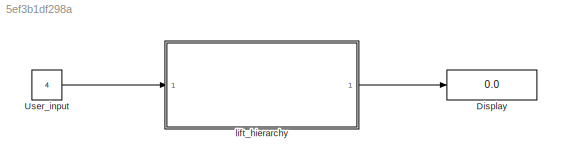
MODEL slx_5ef3b1df298a
KIND model
CONFIG AbsTol = auto
CONFIG EnableMultiTasking = off
CONFIG FixedStep = auto
CONFIG MaxStep = auto
CONFIG MinStep = auto
CONFIG RelTol = 1e-3
CONFIG SampleTimeConstraint = Unconstrained
CONFIG SolverName = VariableStepAuto
CONFIG StartTime = 0.0
CONFIG StopTime = 10.0
BLOCK [Display] Display
  Decimation = 1
  Ports = [1]
BLOCK [Constant] User_input
  Value = 4
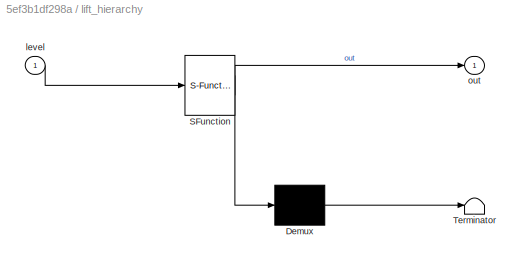
BLOCK [SubSystem] lift_hierarchy
  ErrorFcn = Stateflow.Translate.translate
  PermitHierarchicalResolution = ExplicitOnly
  Ports = [1, 1]
  RequestExecContextInheritance = off
  SFBlockType = Chart
  TreatAsAtomicUnit = on
BLOCK [Demux] lift_hierarchy/ Demux 
  Outputs = 1
  Ports = [1, 1]
BLOCK [S-Function] lift_hierarchy/ SFunction 
  EnableBusSupport = on
  FunctionName = sf_sfun
  PortCounts = [1 2]
  Ports = [1, 2]
  SFcnIsStateOwnerBlock = off
  SFunctionDeploymentMode = off
  Tag = Stateflow S-Function 3
BLOCK [Terminator] lift_hierarchy/ Terminator 
BLOCK [Inport] lift_hierarchy/level
BLOCK [Outport] lift_hierarchy/out
LINE User_input:1 -> lift_hierarchy:1
LINE lift_hierarchy:1 -> Display:1
CHART lift_hierarchy states=5 transitions=13
  STATE_LABEL 'Run_state'
  STATE_LABEL 'stop\nout=curr_st;'
  STATE_LABEL 'up\nentry:\ncurr_st=curr_st+1;\nout=curr_st;'
  STATE_LABEL 'down\nentry:\ncurr_st=curr_st-1;\nout=curr_st;'
  STATE_LABEL '[level==curr_st]'
  STATE_LABEL '[curr_st<level]'
  STATE_LABEL '[curr_st>level]'
  STATE_LABEL '[curr_st==level]'
  STATE_LABEL '[curr_st==level]'
  STATE_LABEL '[curr_st<level]'
  STATE_LABEL 'stop\nout=curr_st;'
  STATE_LABEL 'up\nentry:\ncurr_st=curr_st+1;\nout=curr_st;'
  STATE_LABEL 'down\nentry:\ncurr_st=curr_st-1;\nout=curr_st;'
  STATE_LABEL 'wait\nentry:\ncnt=0;\ndu:\ncnt=cnt+1;\n'
CHART  states=0 transitions=0
